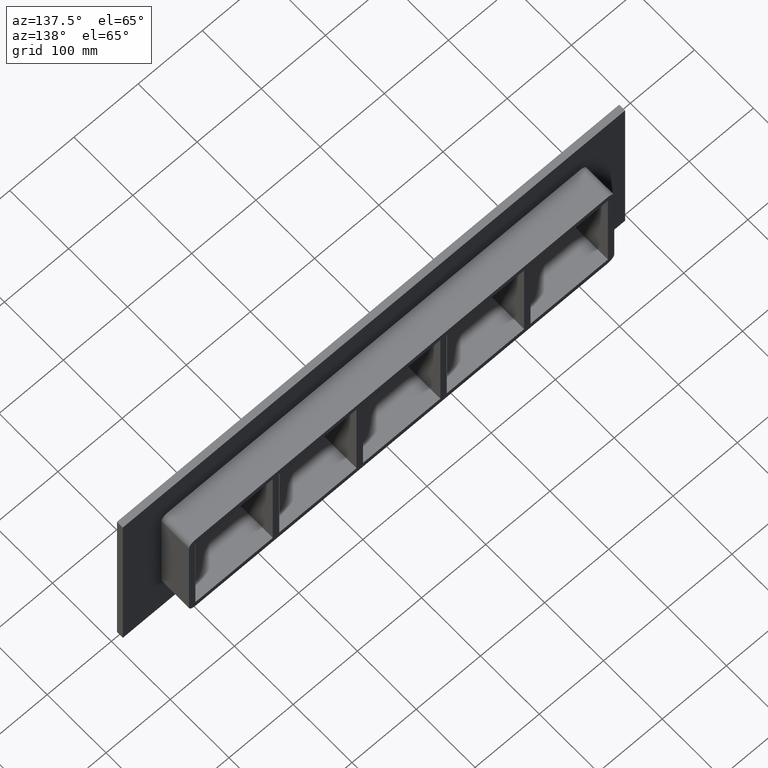
[diagram: clean part render]
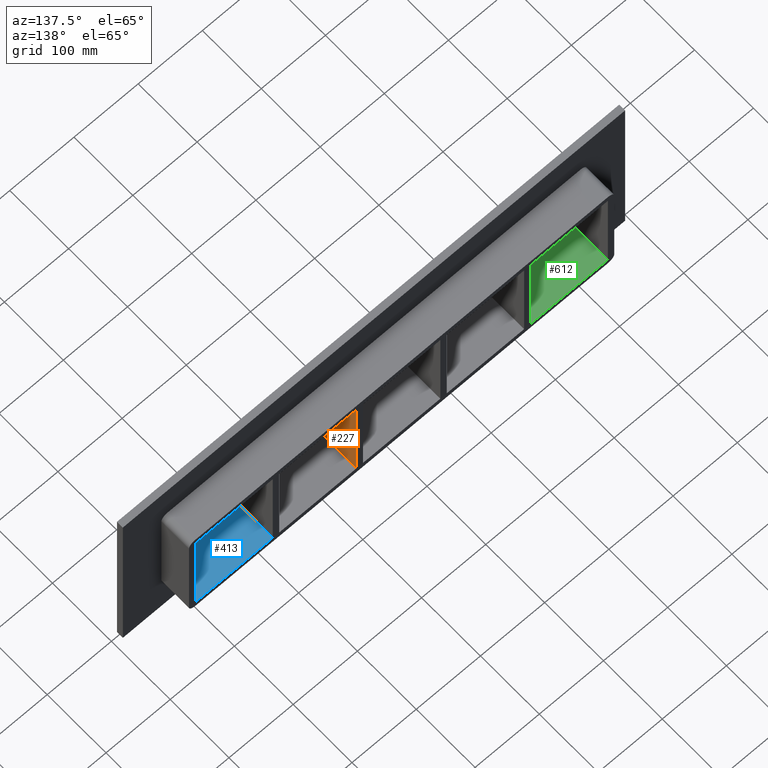
[diagram: same view with three faces highlighted in distinct colors, each labeled with its STEP entity id]
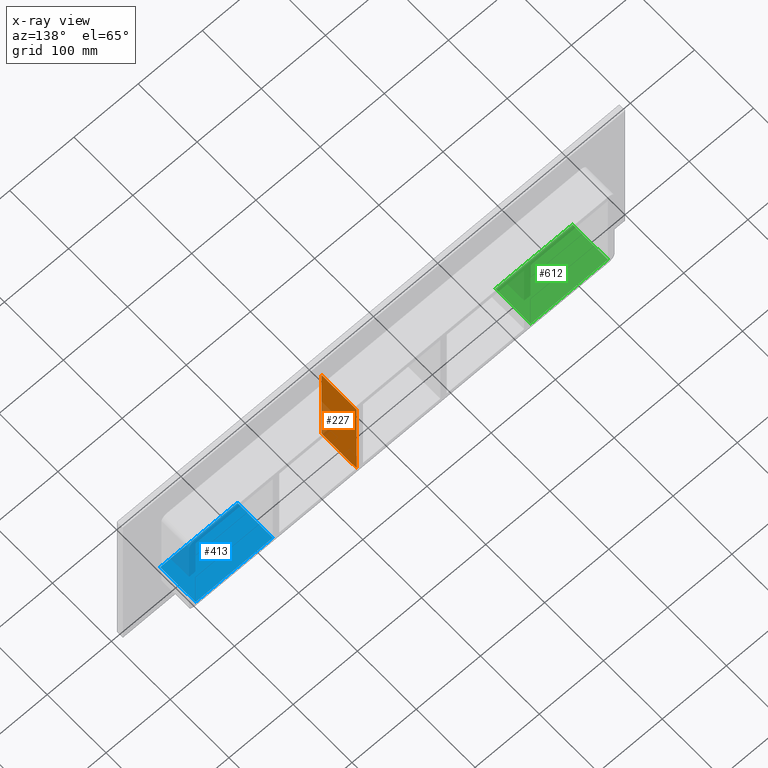
[diagram: x-ray of the same camera — body ghosted, the three highlighted faces saturated]
A machine part, auxiliary view with three faces highlighted in distinct colors.
The next image is the same camera in x-ray (body ghosted, the three faces saturated) — at least one of them is partly hidden behind the body in this view.
Their STEP definitions:

[orange] entity #227 — the highlighted planar face has unit normal (1, 0, 0).
#188=CARTESIAN_POINT('',(70.249999999992738,-3.0,79.750000000000028));
#189=DIRECTION('',(1.0,0.0,0.0));
#190=DIRECTION('',(0.0,0.0,-1.0));
#191=AXIS2_PLACEMENT_3D('',#188,#189,#190);
#192=PLANE('',#191);
#193=CARTESIAN_POINT('',(70.249999999992738,-3.0,79.750000000000028));
#194=VERTEX_POINT('',#193);
#195=CARTESIAN_POINT('',(70.249999999992738,-3.0,-79.749999999984055));
#196=VERTEX_POINT('',#195);
#197=CARTESIAN_POINT('',(70.249999999992738,-3.0,79.750000000000028));
#198=DIRECTION('',(0.0,0.0,-1.0));
#199=VECTOR('',#198,159.49999999998408);
#200=LINE('',#197,#199);
#201=EDGE_CURVE('',#194,#196,#200,.T.);
#202=ORIENTED_EDGE('',*,*,#201,.T.);
#203=CARTESIAN_POINT('',(70.249999999992738,57.0,-79.749999999984055));
#204=VERTEX_POINT('',#203);
#205=CARTESIAN_POINT('',(70.249999999992738,57.000000000000007,-79.75));
#206=DIRECTION('',(0.0,-1.0,0.0));
#207=VECTOR('',#206,60.000000000000007);
#208=LINE('',#205,#207);
#209=EDGE_CURVE('',#204,#196,#208,.T.);
#210=ORIENTED_EDGE('',*,*,#209,.F.);
#211=CARTESIAN_POINT('',(70.249999999992738,57.0,79.750000000000028));
#212=VERTEX_POINT('',#211);
#213=CARTESIAN_POINT('',(70.249999999992738,57.0,79.750000000000028));
#214=DIRECTION('',(0.0,0.0,-1.0));
#215=VECTOR('',#214,159.49999999998408);
#216=LINE('',#213,#215);
#217=EDGE_CURVE('',#212,#204,#216,.T.);
#218=ORIENTED_EDGE('',*,*,#217,.F.);
#219=CARTESIAN_POINT('',(70.249999999992738,-3.0,79.750000000000014));
#220=DIRECTION('',(0.0,1.0,0.0));
#221=VECTOR('',#220,60.000000000000007);
#222=LINE('',#219,#221);
#223=EDGE_CURVE('',#194,#212,#222,.T.);
#224=ORIENTED_EDGE('',*,*,#223,.F.);
#225=EDGE_LOOP('',(#202,#210,#218,#224));
#226=FACE_OUTER_BOUND('',#225,.T.);
#227=ADVANCED_FACE('',(#226),#192,.T.);

[blue] entity #413 — the highlighted planar face has unit normal (0, 0, -1).
#115=CARTESIAN_POINT('',(200.74999999999278,-3.0,-79.749999999984055));
#116=VERTEX_POINT('',#115);
#123=CARTESIAN_POINT('',(200.74999999999278,57.0,-79.749999999984055));
#124=VERTEX_POINT('',#123);
#125=CARTESIAN_POINT('',(200.74999999999278,57.000000000000007,-79.75));
#126=DIRECTION('',(0.0,-1.0,0.0));
#127=VECTOR('',#126,60.000000000000007);
#128=LINE('',#125,#127);
#129=EDGE_CURVE('',#124,#116,#128,.T.);
#383=CARTESIAN_POINT('',(321.25,0.0,-79.75));
#384=DIRECTION('',(0.0,0.0,-1.0));
#385=DIRECTION('',(-1.0,0.0,0.0));
#386=AXIS2_PLACEMENT_3D('',#383,#384,#385);
#387=PLANE('',#386);
#388=ORIENTED_EDGE('',*,*,#129,.T.);
#389=CARTESIAN_POINT('',(321.25,-3.0,-79.75));
#390=VERTEX_POINT('',#389);
#391=CARTESIAN_POINT('',(321.25,-3.0,-79.75));
#392=DIRECTION('',(-1.0,0.0,0.0));
#393=VECTOR('',#392,120.50000000000722);
#394=LINE('',#391,#393);
#395=EDGE_CURVE('',#390,#116,#394,.T.);
#396=ORIENTED_EDGE('',*,*,#395,.F.);
#397=CARTESIAN_POINT('',(321.25,57.0,-79.75));
#398=VERTEX_POINT('',#397);
#399=CARTESIAN_POINT('',(321.25,57.0,-79.75));
#400=DIRECTION('',(0.0,-1.0,0.0));
#401=VECTOR('',#400,60.0);
#402=LINE('',#399,#401);
#403=EDGE_CURVE('',#398,#390,#402,.T.);
#404=ORIENTED_EDGE('',*,*,#403,.F.);
#405=CARTESIAN_POINT('',(200.74999999999278,57.0,-79.75));
#406=DIRECTION('',(1.0,0.0,0.0));
#407=VECTOR('',#406,120.50000000000722);
#408=LINE('',#405,#407);
#409=EDGE_CURVE('',#124,#398,#408,.T.);
#410=ORIENTED_EDGE('',*,*,#409,.F.);
#411=EDGE_LOOP('',(#388,#396,#404,#410));
#412=FACE_OUTER_BOUND('',#411,.T.);
#413=ADVANCED_FACE('',(#412),#387,.F.);

[green] entity #612 — the highlighted planar face has unit normal (0, 0, -1).
#525=CARTESIAN_POINT('',(-200.75000000000131,-3.0,-79.75));
#526=VERTEX_POINT('',#525);
#543=CARTESIAN_POINT('',(-200.75000000000131,57.0,-79.75));
#544=VERTEX_POINT('',#543);
#551=CARTESIAN_POINT('',(-200.75000000000131,-3.0,-79.75));
#552=DIRECTION('',(0.0,1.0,0.0));
#553=VECTOR('',#552,60.000000000000007);
#554=LINE('',#551,#553);
#555=EDGE_CURVE('',#526,#544,#554,.T.);
#582=CARTESIAN_POINT('',(321.25,0.0,-79.75));
#583=DIRECTION('',(0.0,0.0,-1.0));
#584=DIRECTION('',(-1.0,0.0,0.0));
#585=AXIS2_PLACEMENT_3D('',#582,#583,#584);
#586=PLANE('',#585);
#587=ORIENTED_EDGE('',*,*,#555,.T.);
#588=CARTESIAN_POINT('',(-321.25,57.0,-79.75));
#589=VERTEX_POINT('',#588);
#590=CARTESIAN_POINT('',(-321.25,57.0,-79.75));
#591=DIRECTION('',(1.0,0.0,0.0));
#592=VECTOR('',#591,120.49999999999872);
#593=LINE('',#590,#592);
#594=EDGE_CURVE('',#589,#544,#593,.T.);
#595=ORIENTED_EDGE('',*,*,#594,.F.);
#596=CARTESIAN_POINT('',(-321.25,-3.0,-79.75));
#597=VERTEX_POINT('',#596);
#598=CARTESIAN_POINT('',(-321.24999999999994,-3.0,-79.75));
#599=DIRECTION('',(0.0,1.0,0.0));
#600=VECTOR('',#599,60.0);
#601=LINE('',#598,#600);
#602=EDGE_CURVE('',#597,#589,#601,.T.);
#603=ORIENTED_EDGE('',*,*,#602,.F.);
#604=CARTESIAN_POINT('',(-200.75000000000128,-3.0,-79.75));
#605=DIRECTION('',(-1.0,0.0,0.0));
#606=VECTOR('',#605,120.49999999999872);
#607=LINE('',#604,#606);
#608=EDGE_CURVE('',#526,#597,#607,.T.);
#609=ORIENTED_EDGE('',*,*,#608,.F.);
#610=EDGE_LOOP('',(#587,#595,#603,#609));
#611=FACE_OUTER_BOUND('',#610,.T.);
#612=ADVANCED_FACE('',(#611),#586,.F.);